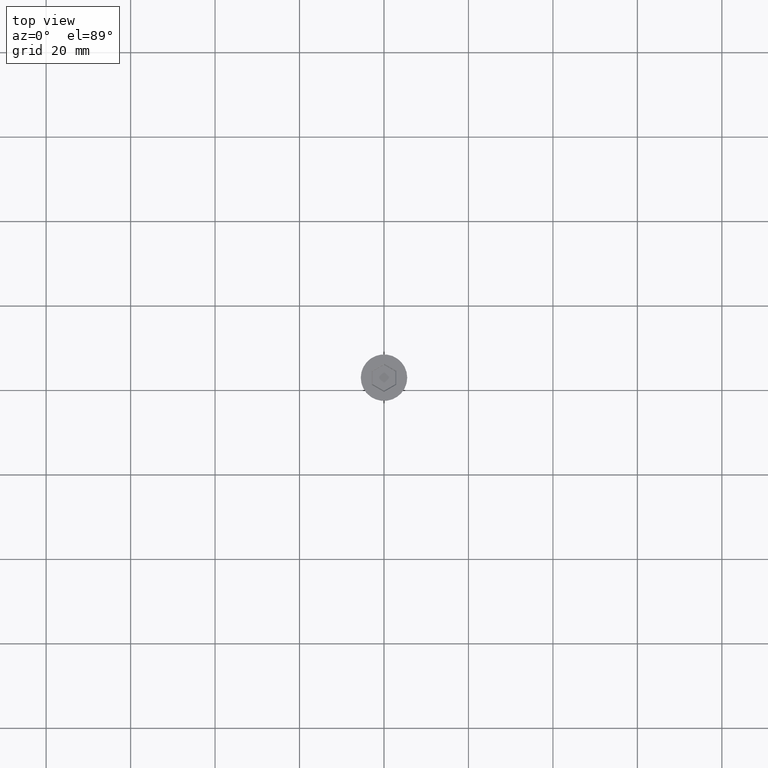
[diagram: clean part render]
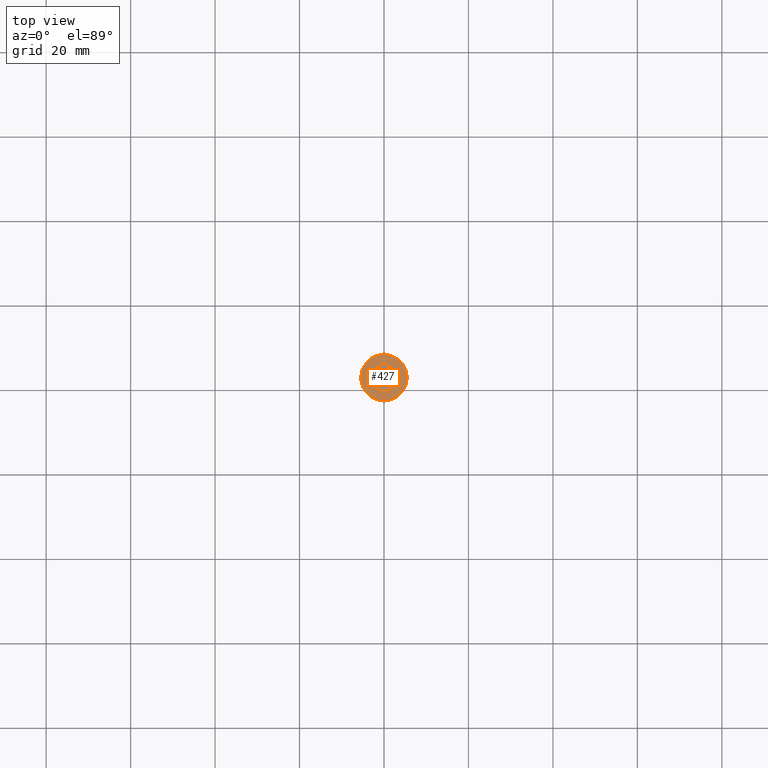
[diagram: same view with one face highlighted and labeled with its STEP entity id]
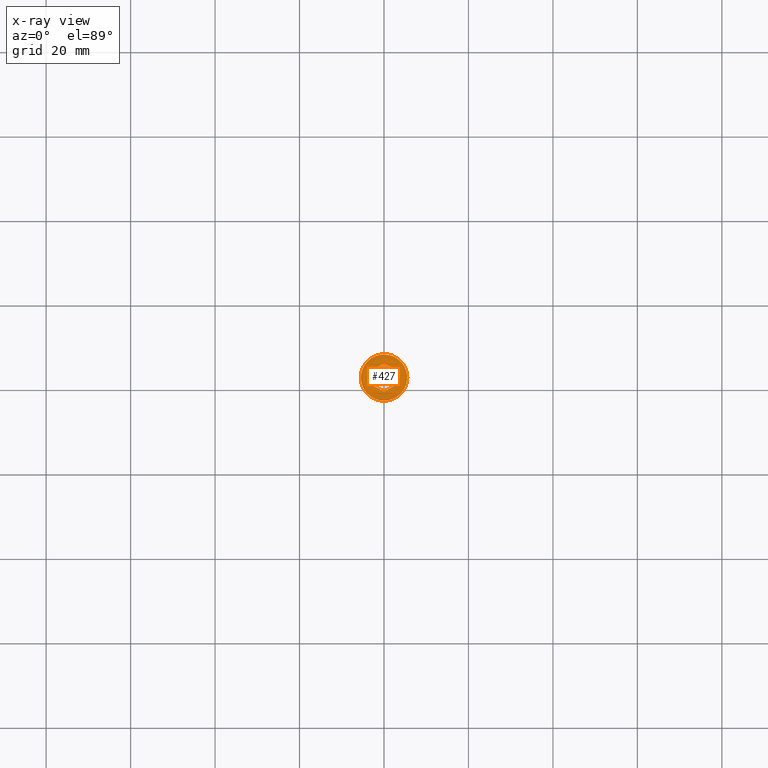
[diagram: x-ray of the same camera — body ghosted, the highlighted face saturated]
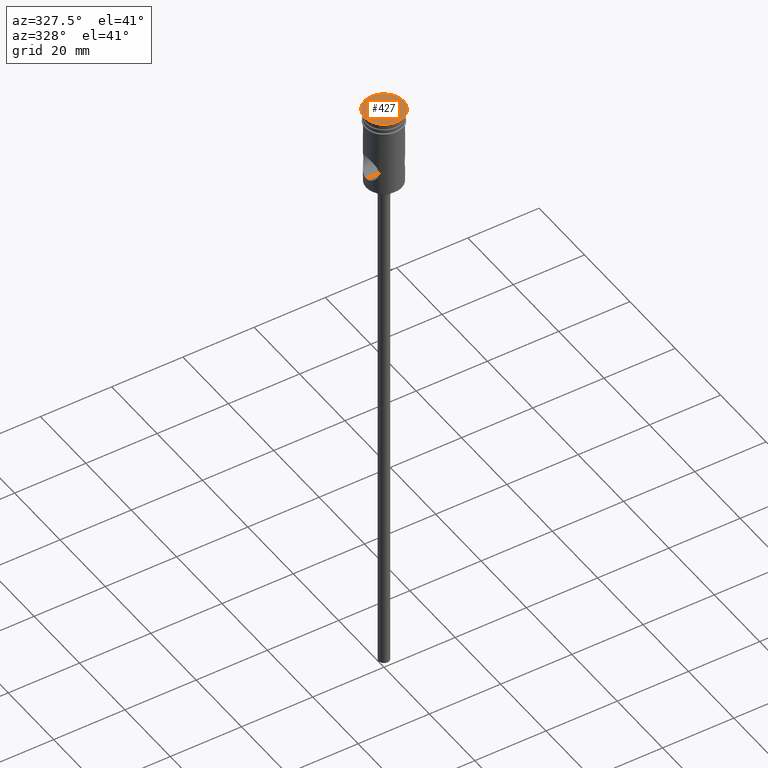
[diagram: same view with one face highlighted and labeled with its STEP entity id]
A machine part, top view. The second image highlights one B-rep face of the part: STEP entity #427.
The next image is the same camera in x-ray: the body ghosted, the highlighted face saturated — about 0% of this face is hidden behind the body in this view.
A second angle (auxiliary view) of the same face is appended — the face is thin or edge-on in the first view.
In plain terms, the highlighted planar face has unit normal (0, -0, 1).
Its self-contained STEP definition (entity closure, byte-faithful):
#2 = CARTESIAN_POINT ( 'NONE',  ( -4.552601062339046804E-16, -3.348631561299821868, 0.000000000000000000 ) ) ;
#17 = VERTEX_POINT ( 'NONE', #1142 ) ;
#61 = LINE ( 'NONE', #499, #208 ) ;
#80 = VECTOR ( 'NONE', #641, 1000.000000000000000 ) ;
#88 = EDGE_CURVE ( 'NONE', #17, #1320, #651, .T. ) ;
#103 = FACE_BOUND ( 'NONE', #530, .T. ) ;
#106 = VERTEX_POINT ( 'NONE', #2 ) ;
#137 = ORIENTED_EDGE ( 'NONE', *, *, #996, .T. ) ;
#170 = DIRECTION ( 'NONE',  ( 0.8660254037844387076, 0.4999999999999998890, 0.000000000000000000 ) ) ;
#174 = AXIS2_PLACEMENT_3D ( 'NONE', #774, #1390, #1218 ) ;
#178 = DIRECTION ( 'NONE',  ( 1.000000000000000000, 0.000000000000000000, 0.000000000000000000 ) ) ;
#195 = CARTESIAN_POINT ( 'NONE',  ( -2.899999999999994138, 1.558845726811988852, 0.000000000000000000 ) ) ;
#205 = VECTOR ( 'NONE', #170, 1000.000000000000000 ) ;
#208 = VECTOR ( 'NONE', #642, 1000.000000000000114 ) ;
#220 = CARTESIAN_POINT ( 'NONE',  ( 5.500000000000000000, 0.000000000000000000, 0.000000000000000000 ) ) ;
#251 = VECTOR ( 'NONE', #624, 1000.000000000000000 ) ;
#279 = ORIENTED_EDGE ( 'NONE', *, *, #936, .T. ) ;
#317 = VECTOR ( 'NONE', #907, 1000.000000000000000 ) ;
#372 = ORIENTED_EDGE ( 'NONE', *, *, #1015, .T. ) ;
#377 = EDGE_CURVE ( 'NONE', #853, #734, #1287, .T. ) ;
#427 = ADVANCED_FACE ( 'NONE', ( #103, #682 ), #669, .T. ) ;
#455 = CARTESIAN_POINT ( 'NONE',  ( 2.799999999999996270, 1.732050807568872086, 0.000000000000000000 ) ) ;
#474 = CIRCLE ( 'NONE', #174, 5.500000000000000000 ) ;
#499 = CARTESIAN_POINT ( 'NONE',  ( -2.799999999999997158, -1.732050807568871864, 0.000000000000000000 ) ) ;
#506 = ORIENTED_EDGE ( 'NONE', *, *, #377, .T. ) ;
#530 = EDGE_LOOP ( 'NONE', ( #698, #782, #137, #964, #506, #1118 ) ) ;
#573 = DIRECTION ( 'NONE',  ( 0.000000000000000000, -0.000000000000000000, 1.000000000000000000 ) ) ;
#577 = CARTESIAN_POINT ( 'NONE',  ( 2.899999999999992806, 1.674315780649911378, 0.000000000000000000 ) ) ;
#582 = CARTESIAN_POINT ( 'NONE',  ( 0.09999999999999654998, -3.290896534380861382, 0.000000000000000000 ) ) ;
#613 = EDGE_CURVE ( 'NONE', #734, #106, #817, .T. ) ;
#624 = DIRECTION ( 'NONE',  ( -1.391032035867740017E-16, -1.000000000000000000, 0.000000000000000000 ) ) ;
#641 = DIRECTION ( 'NONE',  ( 0.000000000000000000, 1.000000000000000000, 0.000000000000000000 ) ) ;
#642 = DIRECTION ( 'NONE',  ( -0.8660254037844385966, 0.5000000000000001110, 0.000000000000000000 ) ) ;
#651 = LINE ( 'NONE', #195, #80 ) ;
#669 = PLANE ( 'NONE',  #927 ) ;
#682 = FACE_OUTER_BOUND ( 'NONE', #1028, .T. ) ;
#697 = DIRECTION ( 'NONE',  ( -0.8660254037844387076, -0.4999999999999998890, 0.000000000000000000 ) ) ;
#698 = ORIENTED_EDGE ( 'NONE', *, *, #1171, .T. ) ;
#709 = CIRCLE ( 'NONE', #943, 5.500000000000000000 ) ;
#734 = VERTEX_POINT ( 'NONE', #1091 ) ;
#735 = CARTESIAN_POINT ( 'NONE',  ( -9.683804684061200344E-16, 3.348631561299821868, 0.000000000000000000 ) ) ;
#754 = CARTESIAN_POINT ( 'NONE',  ( 0.000000000000000000, 0.000000000000000000, 0.000000000000000000 ) ) ;
#774 = CARTESIAN_POINT ( 'NONE',  ( 0.000000000000000000, 0.000000000000000000, 0.000000000000000000 ) ) ;
#782 = ORIENTED_EDGE ( 'NONE', *, *, #88, .T. ) ;
#817 = LINE ( 'NONE', #582, #1070 ) ;
#853 = VERTEX_POINT ( 'NONE', #577 ) ;
#875 = VERTEX_POINT ( 'NONE', #1351 ) ;
#907 = DIRECTION ( 'NONE',  ( 0.8660254037844387076, -0.4999999999999998335, 0.000000000000000000 ) ) ;
#927 = AXIS2_PLACEMENT_3D ( 'NONE', #1445, #573, #1022 ) ;
#935 = LINE ( 'NONE', #455, #317 ) ;
#936 = EDGE_CURVE ( 'NONE', #875, #1135, #474, .T. ) ;
#943 = AXIS2_PLACEMENT_3D ( 'NONE', #754, #1187, #178 ) ;
#964 = ORIENTED_EDGE ( 'NONE', *, *, #1045, .T. ) ;
#996 = EDGE_CURVE ( 'NONE', #1320, #1047, #1155, .T. ) ;
#1013 = CARTESIAN_POINT ( 'NONE',  ( -2.899999999999994138, 1.674315780649911600, 0.000000000000000000 ) ) ;
#1015 = EDGE_CURVE ( 'NONE', #1135, #875, #709, .T. ) ;
#1022 = DIRECTION ( 'NONE',  ( 1.000000000000000000, 0.000000000000000000, 0.000000000000000000 ) ) ;
#1028 = EDGE_LOOP ( 'NONE', ( #372, #279 ) ) ;
#1045 = EDGE_CURVE ( 'NONE', #1047, #853, #935, .T. ) ;
#1047 = VERTEX_POINT ( 'NONE', #735 ) ;
#1070 = VECTOR ( 'NONE', #697, 1000.000000000000000 ) ;
#1091 = CARTESIAN_POINT ( 'NONE',  ( 2.899999999999992362, -1.674315780649911822, 0.000000000000000000 ) ) ;
#1118 = ORIENTED_EDGE ( 'NONE', *, *, #613, .T. ) ;
#1135 = VERTEX_POINT ( 'NONE', #220 ) ;
#1142 = CARTESIAN_POINT ( 'NONE',  ( -2.899999999999994138, -1.674315780649910934, 0.000000000000000000 ) ) ;
#1155 = LINE ( 'NONE', #1257, #205 ) ;
#1171 = EDGE_CURVE ( 'NONE', #106, #17, #61, .T. ) ;
#1187 = DIRECTION ( 'NONE',  ( -0.000000000000000000, -0.000000000000000000, 1.000000000000000000 ) ) ;
#1218 = DIRECTION ( 'NONE',  ( 1.000000000000000000, 0.000000000000000000, 0.000000000000000000 ) ) ;
#1257 = CARTESIAN_POINT ( 'NONE',  ( -0.09999999999999764633, 3.290896534380861382, 0.000000000000000000 ) ) ;
#1280 = CARTESIAN_POINT ( 'NONE',  ( 2.899999999999992362, -1.558845726811989296, 0.000000000000000000 ) ) ;
#1287 = LINE ( 'NONE', #1280, #251 ) ;
#1320 = VERTEX_POINT ( 'NONE', #1013 ) ;
#1351 = CARTESIAN_POINT ( 'NONE',  ( -5.500000000000000000, 6.735557395310442023E-16, 0.000000000000000000 ) ) ;
#1390 = DIRECTION ( 'NONE',  ( -0.000000000000000000, -0.000000000000000000, 1.000000000000000000 ) ) ;
#1445 = CARTESIAN_POINT ( 'NONE',  ( 0.000000000000000000, 0.000000000000000000, 0.000000000000000000 ) ) ;